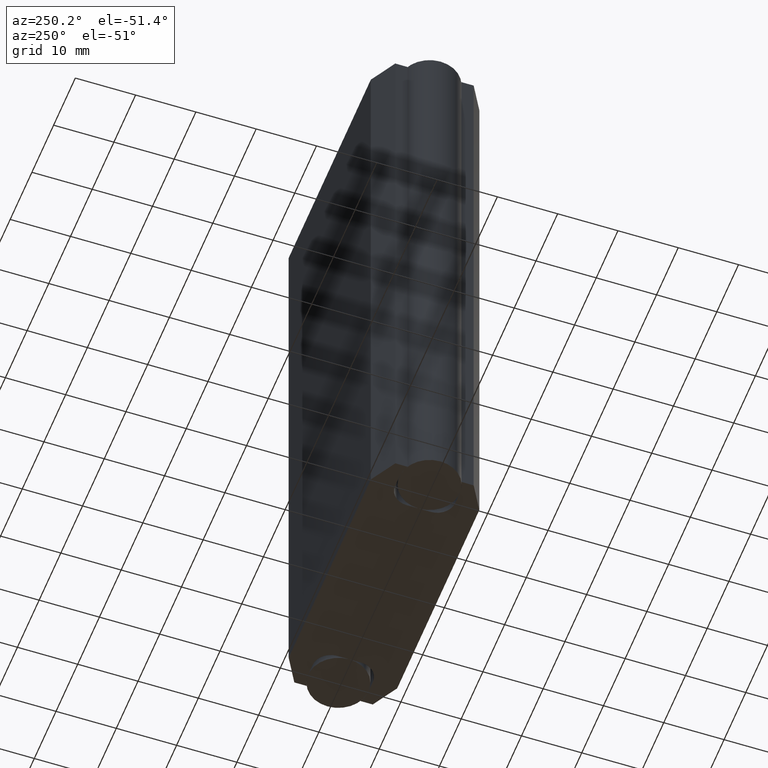
[diagram: clean part render]
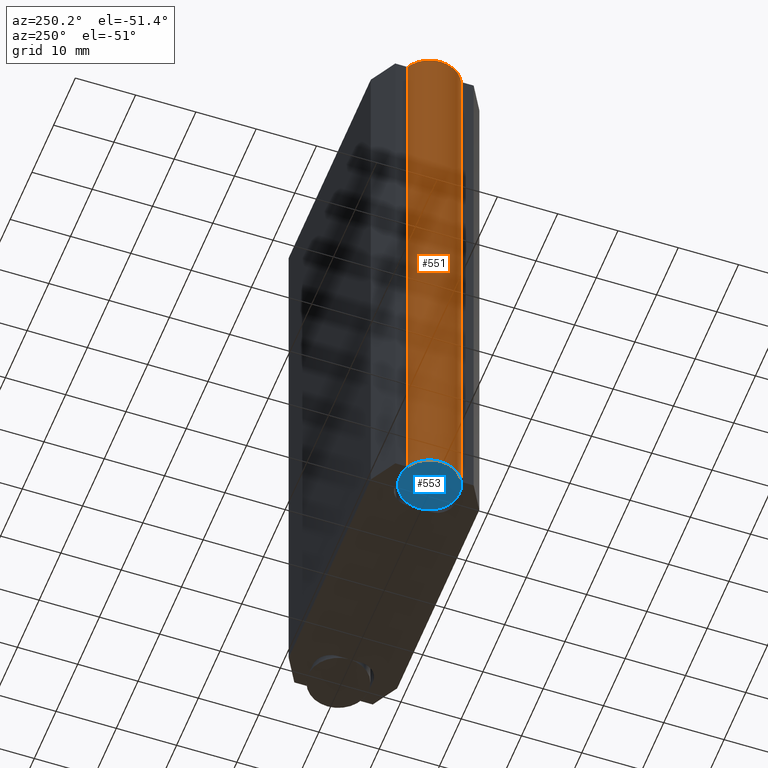
[diagram: same view with the hole feature highlighted: cylindrical wall and planar end face, labeled with their STEP entity ids]
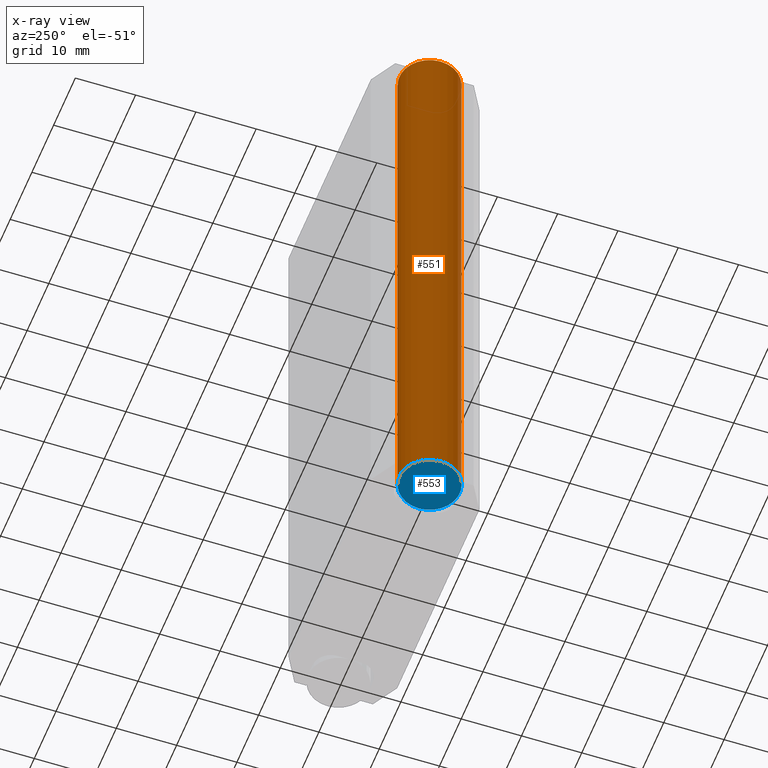
[diagram: x-ray of the same camera — body ghosted, the hole faces saturated]
A machine part, auxiliary view. The highlighted faces form one hole feature of diameter 10 mm: the cylindrical wall (entity #551, orange) and its adjacent planar end face (entity #553, blue) — they share a circular edge in the B-rep.
The next image is the same camera in x-ray (body ghosted, the hole faces saturated) — the bore reads through the body.
Wall:
#39=CYLINDRICAL_SURFACE('',#663,5.);
#66=FACE_OUTER_BOUND('',#95,.T.);
#95=EDGE_LOOP('',(#499,#500,#501,#502));
#154=LINE('',#987,#211);
#211=VECTOR('',#821,5.);
#228=CIRCLE('',#664,5.);
#229=CIRCLE('',#665,5.);
#278=VERTEX_POINT('',#984);
#279=VERTEX_POINT('',#986);
#352=EDGE_CURVE('',#278,#278,#228,.T.);
#353=EDGE_CURVE('',#278,#279,#154,.T.);
#354=EDGE_CURVE('',#279,#279,#229,.T.);
#499=ORIENTED_EDGE('',*,*,#352,.F.);
#500=ORIENTED_EDGE('',*,*,#353,.T.);
#501=ORIENTED_EDGE('',*,*,#354,.F.);
#502=ORIENTED_EDGE('',*,*,#353,.F.);
#551=ADVANCED_FACE('',(#66),#39,.T.);
#663=AXIS2_PLACEMENT_3D('',#983,#817,#818);
#664=AXIS2_PLACEMENT_3D('',#985,#819,#820);
#665=AXIS2_PLACEMENT_3D('',#988,#822,#823);
#817=DIRECTION('center_axis',(0.,0.,1.));
#818=DIRECTION('ref_axis',(-1.,0.,0.));
#819=DIRECTION('center_axis',(0.,0.,1.));
#820=DIRECTION('ref_axis',(-1.,0.,0.));
#821=DIRECTION('',(0.,0.,-1.));
#822=DIRECTION('center_axis',(0.,0.,-1.));
#823=DIRECTION('ref_axis',(-1.,0.,0.));
#983=CARTESIAN_POINT('Origin',(0.,0.,0.));
#984=CARTESIAN_POINT('',(5.,6.12323399573677E-16,100.));
#985=CARTESIAN_POINT('Origin',(0.,0.,100.));
#986=CARTESIAN_POINT('',(5.,6.12323399573677E-16,0.));
#987=CARTESIAN_POINT('',(5.,6.12323399573677E-16,0.));
#988=CARTESIAN_POINT('Origin',(0.,0.,0.));
End face:
#68=FACE_OUTER_BOUND('',#97,.T.);
#97=EDGE_LOOP('',(#504));
#229=CIRCLE('',#665,5.);
#279=VERTEX_POINT('',#986);
#354=EDGE_CURVE('',#279,#279,#229,.T.);
#504=ORIENTED_EDGE('',*,*,#354,.T.);
#524=PLANE('',#667);
#553=ADVANCED_FACE('',(#68),#524,.F.);
#665=AXIS2_PLACEMENT_3D('',#988,#822,#823);
#667=AXIS2_PLACEMENT_3D('',#990,#826,#827);
#822=DIRECTION('center_axis',(0.,0.,-1.));
#823=DIRECTION('ref_axis',(-1.,0.,0.));
#826=DIRECTION('center_axis',(0.,0.,1.));
#827=DIRECTION('ref_axis',(1.,0.,0.));
#986=CARTESIAN_POINT('',(5.,6.12323399573677E-16,0.));
#988=CARTESIAN_POINT('Origin',(0.,0.,0.));
#990=CARTESIAN_POINT('Origin',(-2.36064120735332E-16,9.25185853854297E-17,
0.));